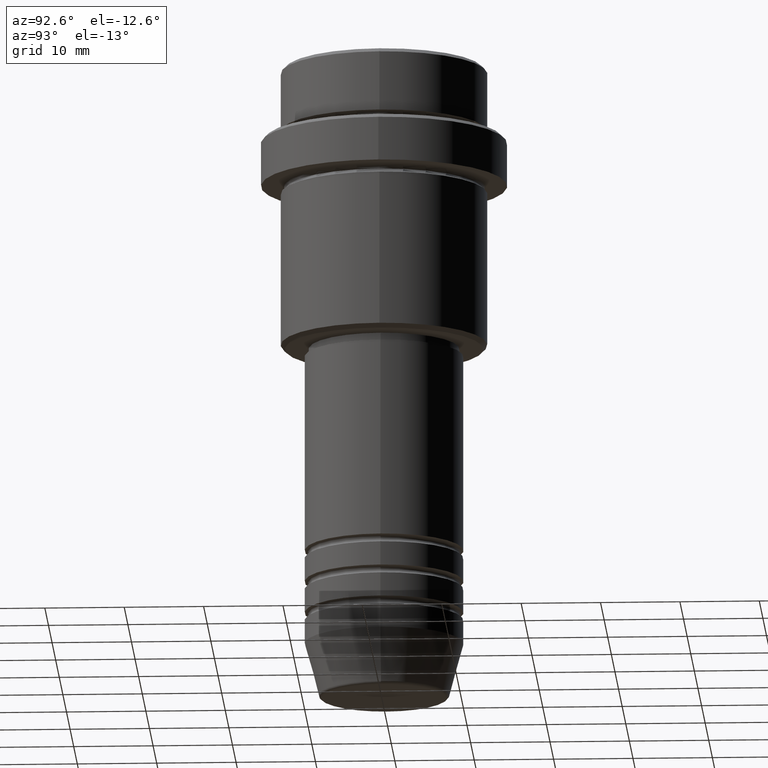
[diagram: clean part render]
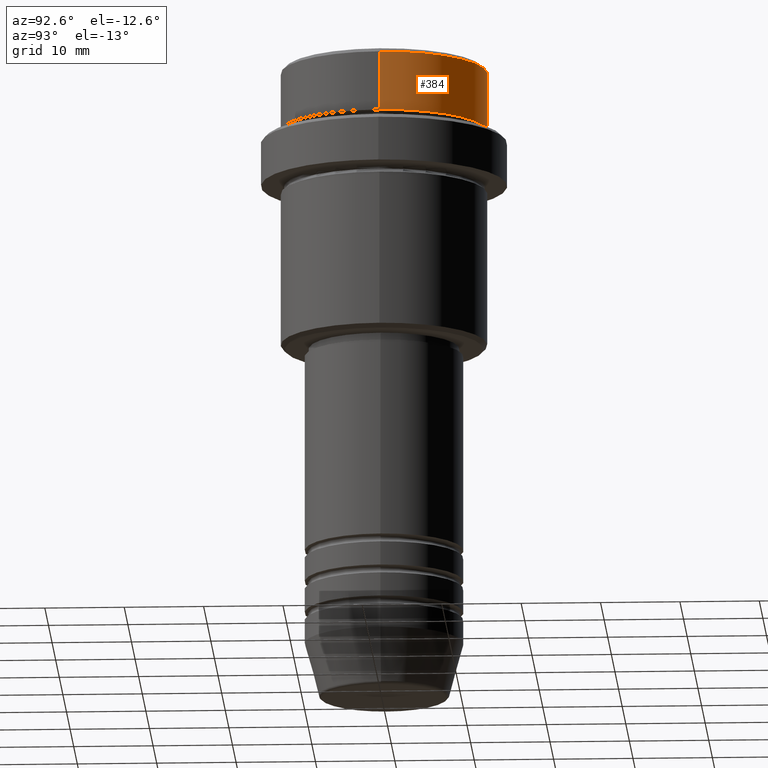
[diagram: same view with one face highlighted and labeled with its STEP entity id]
A machine part, auxiliary view. The second image highlights one B-rep face of the part: STEP entity #384.
In plain terms, the highlighted cylindrical surface (partial cylindrical patch) has radius 13 mm, axis along (-0, -0, 1).
Its self-contained STEP definition (entity closure, byte-faithful):
#29 = DIRECTION ( 'NONE',  ( 1.000000000000000000, 0.000000000000000000, 0.000000000000000000 ) ) ;
#66 = EDGE_CURVE ( 'NONE', #503, #666, #274, .T. ) ;
#158 = ORIENTED_EDGE ( 'NONE', *, *, #619, .F. ) ;
#167 = CARTESIAN_POINT ( 'NONE',  ( 12.99999999999999822, 0.000000000000000000, -7.999999999999998224 ) ) ;
#185 = CARTESIAN_POINT ( 'NONE',  ( 12.99999999999999822, 0.000000000000000000, 0.000000000000000000 ) ) ;
#225 = ORIENTED_EDGE ( 'NONE', *, *, #66, .T. ) ;
#241 = VERTEX_POINT ( 'NONE', #786 ) ;
#274 = CIRCLE ( 'NONE', #822, 12.99999999999999822 ) ;
#279 = VECTOR ( 'NONE', #905, 1000.000000000000000 ) ;
#301 = EDGE_LOOP ( 'NONE', ( #225, #848, #1358, #158 ) ) ;
#329 = CIRCLE ( 'NONE', #1058, 12.99999999999999822 ) ;
#338 = CYLINDRICAL_SURFACE ( 'NONE', #1075, 12.99999999999999822 ) ;
#356 = CARTESIAN_POINT ( 'NONE',  ( 0.000000000000000000, 0.000000000000000000, -7.999999999999998224 ) ) ;
#384 = ADVANCED_FACE ( 'NONE', ( #906 ), #338, .T. ) ;
#452 = DIRECTION ( 'NONE',  ( 1.000000000000000000, 0.000000000000000000, 0.000000000000000000 ) ) ;
#475 = CARTESIAN_POINT ( 'NONE',  ( -12.99999999999999822, 1.592040838891558898E-15, 0.000000000000000000 ) ) ;
#503 = VERTEX_POINT ( 'NONE', #167 ) ;
#517 = EDGE_CURVE ( 'NONE', #666, #854, #1385, .T. ) ;
#521 = CARTESIAN_POINT ( 'NONE',  ( -12.99999999999999822, 1.592040838891558898E-15, -7.999999999999998224 ) ) ;
#619 = EDGE_CURVE ( 'NONE', #503, #241, #1065, .T. ) ;
#666 = VERTEX_POINT ( 'NONE', #521 ) ;
#667 = CARTESIAN_POINT ( 'NONE',  ( -12.99999999999999822, 1.592040838891558898E-15, -0.4999999999999899525 ) ) ;
#772 = DIRECTION ( 'NONE',  ( 0.000000000000000000, 0.000000000000000000, -1.000000000000000000 ) ) ;
#786 = CARTESIAN_POINT ( 'NONE',  ( 12.99999999999999822, 0.000000000000000000, -0.4999999999999899525 ) ) ;
#822 = AXIS2_PLACEMENT_3D ( 'NONE', #356, #863, #452 ) ;
#847 = DIRECTION ( 'NONE',  ( -0.000000000000000000, -0.000000000000000000, 1.000000000000000000 ) ) ;
#848 = ORIENTED_EDGE ( 'NONE', *, *, #517, .T. ) ;
#854 = VERTEX_POINT ( 'NONE', #667 ) ;
#863 = DIRECTION ( 'NONE',  ( -0.000000000000000000, -0.000000000000000000, 1.000000000000000000 ) ) ;
#905 = DIRECTION ( 'NONE',  ( -0.000000000000000000, -0.000000000000000000, 1.000000000000000000 ) ) ;
#906 = FACE_OUTER_BOUND ( 'NONE', #301, .T. ) ;
#996 = DIRECTION ( 'NONE',  ( -0.000000000000000000, -0.000000000000000000, 1.000000000000000000 ) ) ;
#1058 = AXIS2_PLACEMENT_3D ( 'NONE', #1340, #772, #1333 ) ;
#1065 = LINE ( 'NONE', #185, #1390 ) ;
#1075 = AXIS2_PLACEMENT_3D ( 'NONE', #1227, #996, #29 ) ;
#1227 = CARTESIAN_POINT ( 'NONE',  ( 0.000000000000000000, 0.000000000000000000, 0.000000000000000000 ) ) ;
#1332 = EDGE_CURVE ( 'NONE', #854, #241, #329, .T. ) ;
#1333 = DIRECTION ( 'NONE',  ( 1.000000000000000000, 0.000000000000000000, 0.000000000000000000 ) ) ;
#1340 = CARTESIAN_POINT ( 'NONE',  ( 0.000000000000000000, 0.000000000000000000, -0.4999999999999899525 ) ) ;
#1358 = ORIENTED_EDGE ( 'NONE', *, *, #1332, .T. ) ;
#1385 = LINE ( 'NONE', #475, #279 ) ;
#1390 = VECTOR ( 'NONE', #847, 1000.000000000000000 ) ;